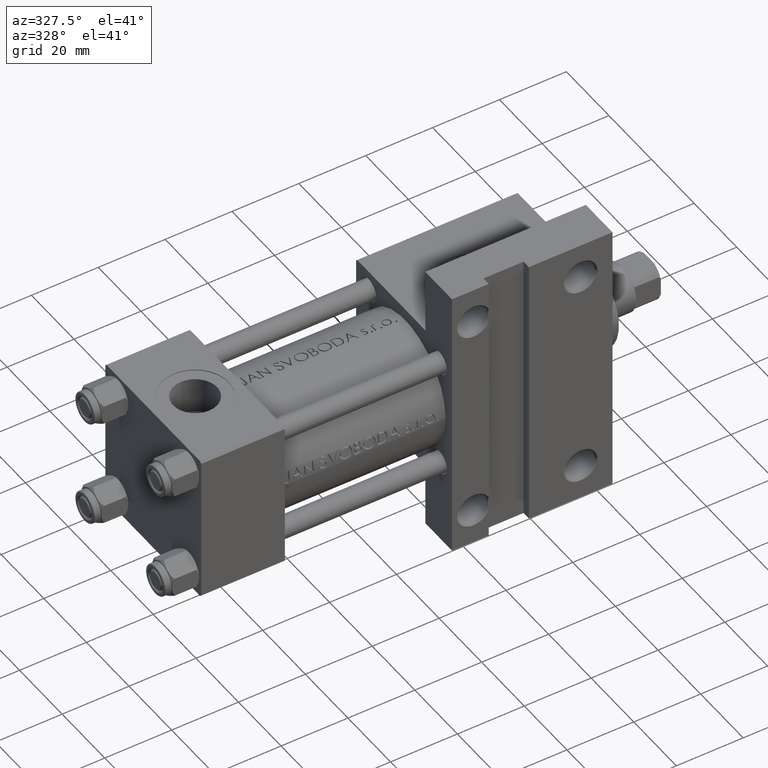
[diagram: clean part render]
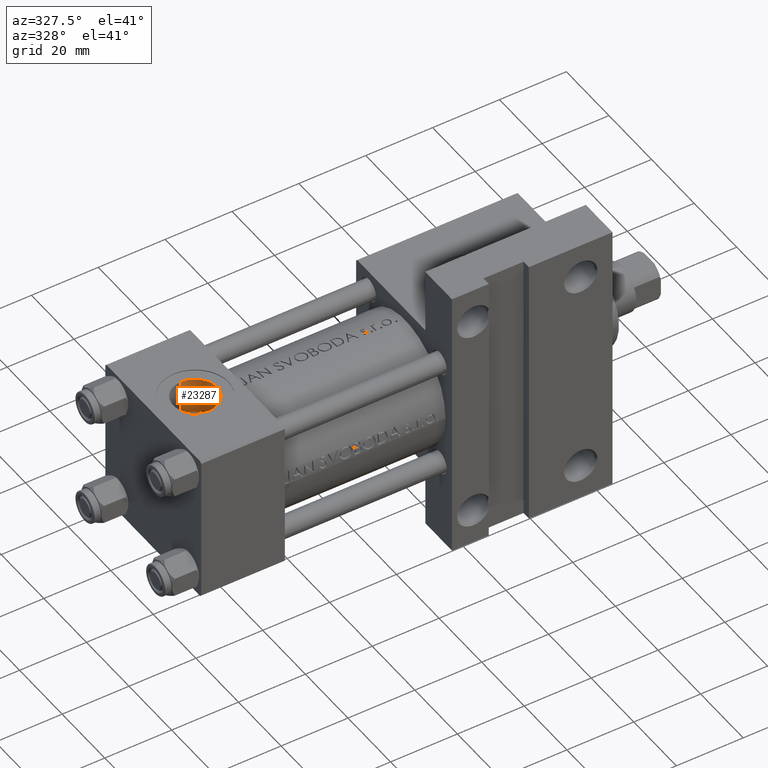
[diagram: same view with one face highlighted and labeled with its STEP entity id]
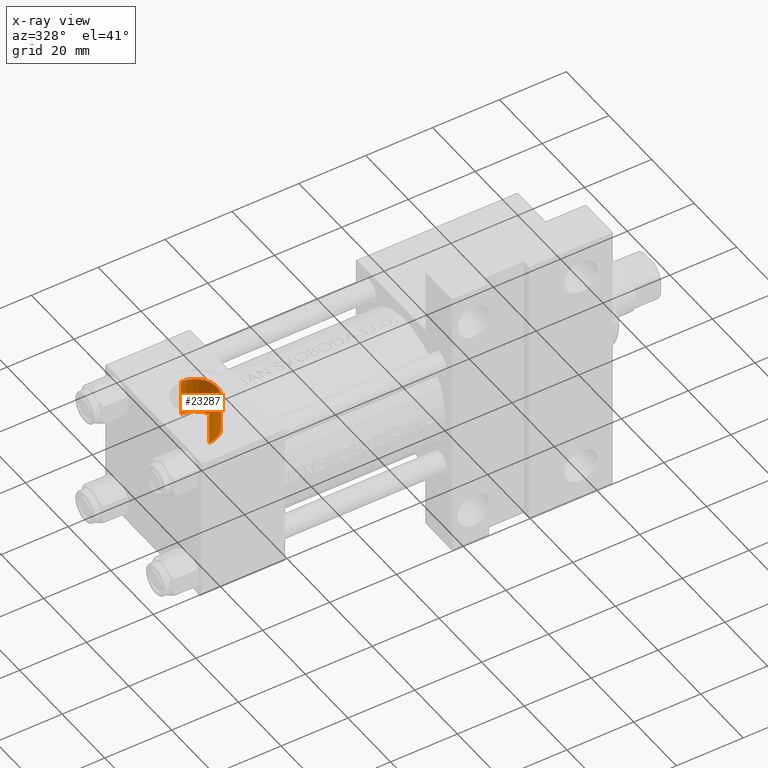
[diagram: x-ray of the same camera — body ghosted, the highlighted face saturated]
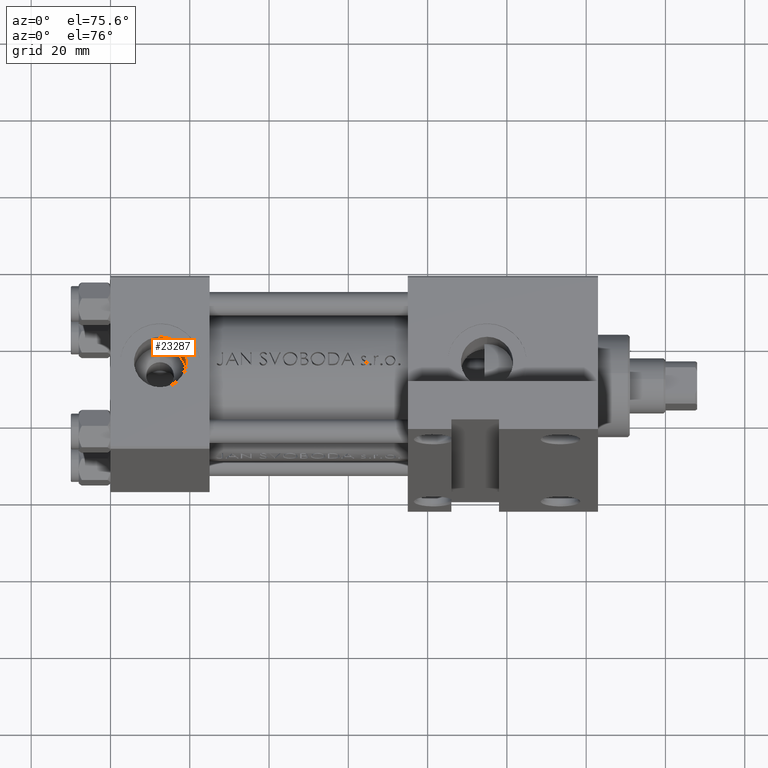
[diagram: same view with one face highlighted and labeled with its STEP entity id]
A machine part, auxiliary view. The second image highlights one B-rep face of the part: STEP entity #23287.
The next image is the same camera in x-ray: the body ghosted, the highlighted face saturated — about 0% of this face is hidden behind the body in this view.
A second angle (auxiliary view) of the same face is appended — the face is thin or edge-on in the first view.
In plain terms, the highlighted cylindrical surface (edge-blend (fillet) strip) has radius 6.58 mm, axis along (-0, -0, 1).
Its self-contained STEP definition (entity closure, byte-faithful):
#5148 = LINE ( 'NONE', #34581, #25148 ) ;
#5570 = CARTESIAN_POINT ( 'NONE',  ( 12.50000000000000000, -11.53999999999997428, 6.579999999999999183 ) ) ;
#6335 = LINE ( 'NONE', #24653, #41481 ) ;
#7994 = ORIENTED_EDGE ( 'NONE', *, *, #30801, .T. ) ;
#9958 = FACE_OUTER_BOUND ( 'NONE', #42855, .T. ) ;
#10748 = VERTEX_POINT ( 'NONE', #20284 ) ;
#13090 = AXIS2_PLACEMENT_3D ( 'NONE', #16486, #42545, #20573 ) ;
#14345 = CARTESIAN_POINT ( 'NONE',  ( 12.50000000000000000, -11.53999999999997428, -6.579999999999997407 ) ) ;
#14410 = EDGE_CURVE ( 'NONE', #38808, #23066, #39138, .T. ) ;
#16486 = CARTESIAN_POINT ( 'NONE',  ( 12.50000000000000000, -11.60000000000000142, 9.454242944073598665E-16 ) ) ;
#18329 = AXIS2_PLACEMENT_3D ( 'NONE', #31212, #45942, #47129 ) ;
#20275 = CARTESIAN_POINT ( 'NONE',  ( 12.50000000000000000, -22.30000000000000071, 6.579999999999998295 ) ) ;
#20284 = CARTESIAN_POINT ( 'NONE',  ( 12.50000000000000000, -22.30000000000000071, -6.579999999999998295 ) ) ;
#20573 = DIRECTION ( 'NONE',  ( 0.000000000000000000, 0.000000000000000000, -1.000000000000000000 ) ) ;
#21869 = CARTESIAN_POINT ( 'NONE',  ( 12.50000000000000000, -22.30000000000000071, 1.734723475976808635E-17 ) ) ;
#22275 = VERTEX_POINT ( 'NONE', #20275 ) ;
#23066 = VERTEX_POINT ( 'NONE', #14345 ) ;
#23287 = ADVANCED_FACE ( 'NONE', ( #9958 ), #24427, .F. ) ;
#23721 = DIRECTION ( 'NONE',  ( -0.000000000000000000, -1.000000000000000000, -8.673617379884036705E-17 ) ) ;
#24427 = CYLINDRICAL_SURFACE ( 'NONE', #13090, 6.579999999999998295 ) ;
#24653 = CARTESIAN_POINT ( 'NONE',  ( 12.50000000000000000, -11.60000000000000142, -6.579999999999997407 ) ) ;
#24902 = AXIS2_PLACEMENT_3D ( 'NONE', #21869, #32954, #47688 ) ;
#25148 = VECTOR ( 'NONE', #23721, 1000.000000000000000 ) ;
#25389 = ORIENTED_EDGE ( 'NONE', *, *, #14410, .T. ) ;
#27210 = CIRCLE ( 'NONE', #24902, 6.579999999999998295 ) ;
#30801 = EDGE_CURVE ( 'NONE', #10748, #22275, #27210, .T. ) ;
#31212 = CARTESIAN_POINT ( 'NONE',  ( 12.50000000000000000, -11.53999999999997428, 9.506284648352922599E-16 ) ) ;
#32954 = DIRECTION ( 'NONE',  ( 0.000000000000000000, -1.000000000000000000, -8.673617379884036705E-17 ) ) ;
#34581 = CARTESIAN_POINT ( 'NONE',  ( 12.50000000000000000, -11.60000000000000142, 6.579999999999999183 ) ) ;
#38808 = VERTEX_POINT ( 'NONE', #5570 ) ;
#39138 = CIRCLE ( 'NONE', #18329, 6.579999999999998295 ) ;
#39287 = EDGE_CURVE ( 'NONE', #38808, #22275, #5148, .T. ) ;
#40237 = ORIENTED_EDGE ( 'NONE', *, *, #43354, .T. ) ;
#41481 = VECTOR ( 'NONE', #43246, 1000.000000000000000 ) ;
#42545 = DIRECTION ( 'NONE',  ( -0.000000000000000000, -1.000000000000000000, -8.673617379884036705E-17 ) ) ;
#42855 = EDGE_LOOP ( 'NONE', ( #46535, #25389, #40237, #7994 ) ) ;
#43246 = DIRECTION ( 'NONE',  ( -0.000000000000000000, -1.000000000000000000, -8.673617379884036705E-17 ) ) ;
#43354 = EDGE_CURVE ( 'NONE', #23066, #10748, #6335, .T. ) ;
#45942 = DIRECTION ( 'NONE',  ( -0.000000000000000000, 1.000000000000000000, 8.673617379884045333E-17 ) ) ;
#46535 = ORIENTED_EDGE ( 'NONE', *, *, #39287, .F. ) ;
#47129 = DIRECTION ( 'NONE',  ( 0.000000000000000000, 0.000000000000000000, -1.000000000000000000 ) ) ;
#47688 = DIRECTION ( 'NONE',  ( 0.000000000000000000, 0.000000000000000000, -1.000000000000000000 ) ) ;